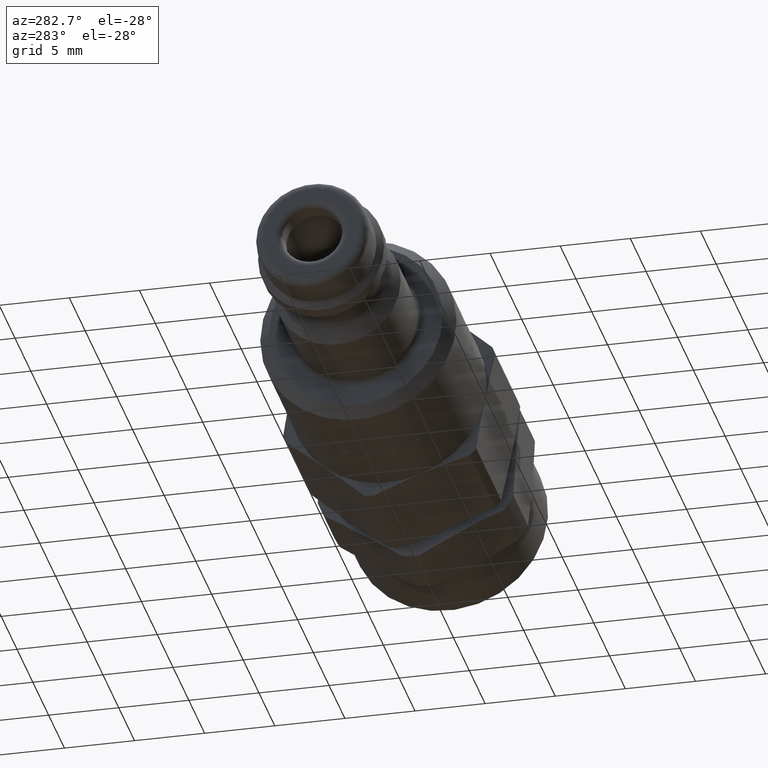
[diagram: clean part render]
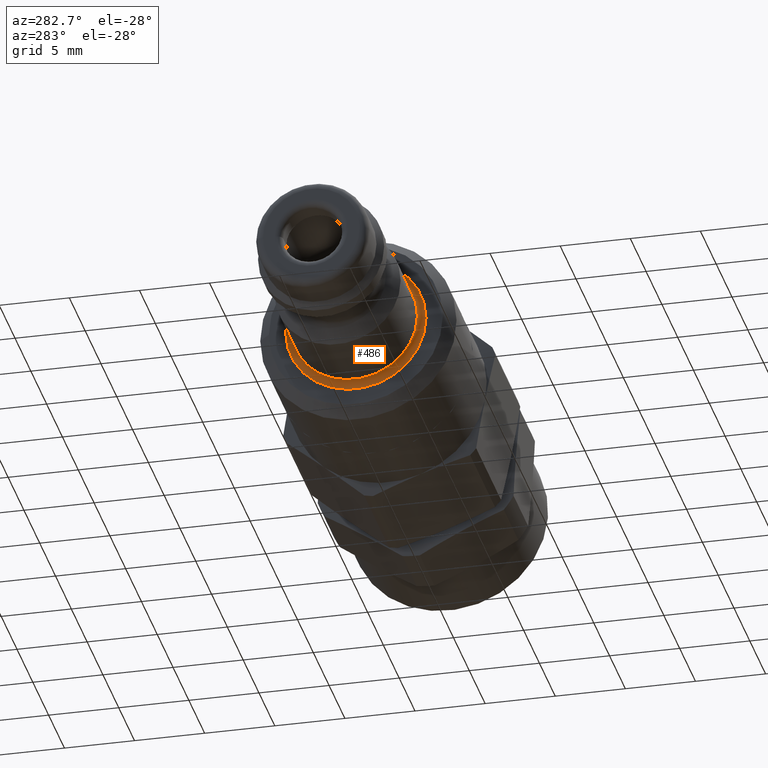
[diagram: same view with one face highlighted and labeled with its STEP entity id]
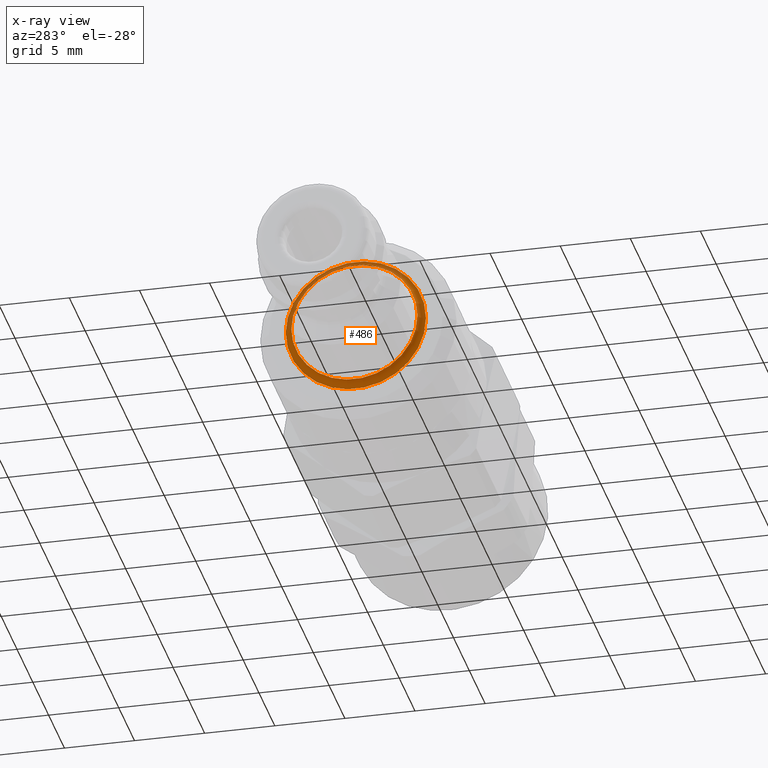
[diagram: x-ray of the same camera — body ghosted, the highlighted face saturated]
A machine part, auxiliary view. The second image highlights one B-rep face of the part: STEP entity #486.
The next image is the same camera in x-ray: the body ghosted, the highlighted face saturated — about 23% of this face is hidden behind the body in this view.
In plain terms, the highlighted toroidal blend (fillet) surface has major radius 5 mm and minor (blend) radius 0.5 mm.
Its self-contained STEP definition (entity closure, byte-faithful):
#459=CARTESIAN_POINT('',(13.600000000000001,0.0,0.0));
#460=DIRECTION('',(1.0,0.0,0.0));
#461=DIRECTION('',(0.0,0.0,-1.0));
#462=AXIS2_PLACEMENT_3D('',#459,#460,#461);
#463=TOROIDAL_SURFACE('',#462,5.0,0.5);
#464=CARTESIAN_POINT('',(13.600000000000001,4.5,0.0));
#465=VERTEX_POINT('',#464);
#466=CARTESIAN_POINT('',(13.600000000000001,0.0,0.0));
#467=DIRECTION('',(1.0,0.0,0.0));
#468=DIRECTION('',(0.0,-1.0,0.0));
#469=AXIS2_PLACEMENT_3D('',#466,#467,#468);
#470=CIRCLE('',#469,4.5);
#471=EDGE_CURVE('',#465,#465,#470,.T.);
#472=ORIENTED_EDGE('',*,*,#471,.T.);
#473=EDGE_LOOP('',(#472));
#474=FACE_OUTER_BOUND('',#473,.T.);
#475=CARTESIAN_POINT('',(14.100000000000001,5.0,-1.224647E-015));
#476=VERTEX_POINT('',#475);
#477=CARTESIAN_POINT('',(14.100000000000001,0.0,0.0));
#478=DIRECTION('',(-1.0,0.0,0.0));
#479=DIRECTION('',(0.0,-1.0,0.0));
#480=AXIS2_PLACEMENT_3D('',#477,#478,#479);
#481=CIRCLE('',#480,5.0);
#482=EDGE_CURVE('',#476,#476,#481,.T.);
#483=ORIENTED_EDGE('',*,*,#482,.T.);
#484=EDGE_LOOP('',(#483));
#485=FACE_BOUND('',#484,.T.);
#486=ADVANCED_FACE('',(#474,#485),#463,.F.);